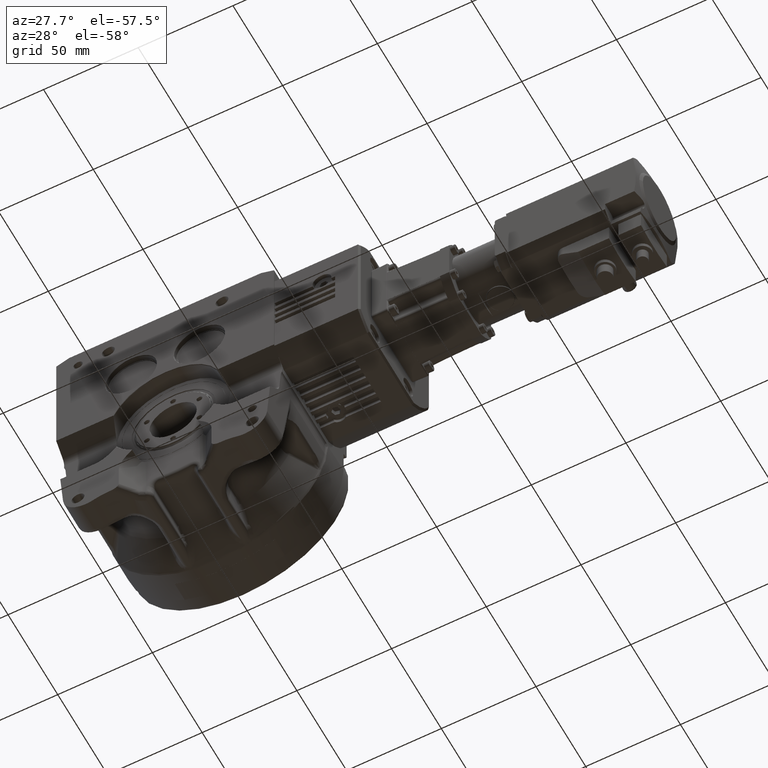
[diagram: clean part render]
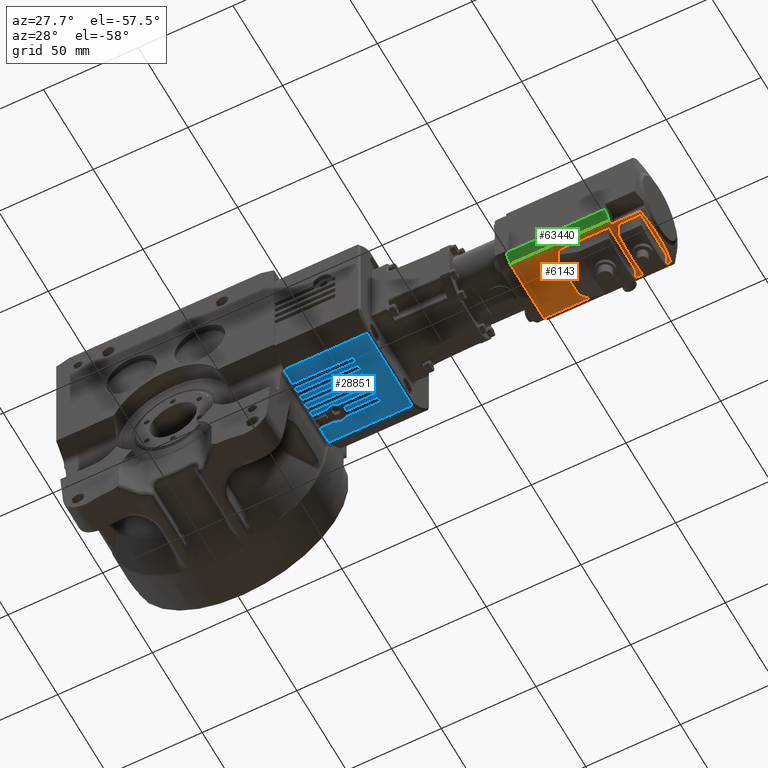
[diagram: same view with three faces highlighted in distinct colors, each labeled with its STEP entity id]
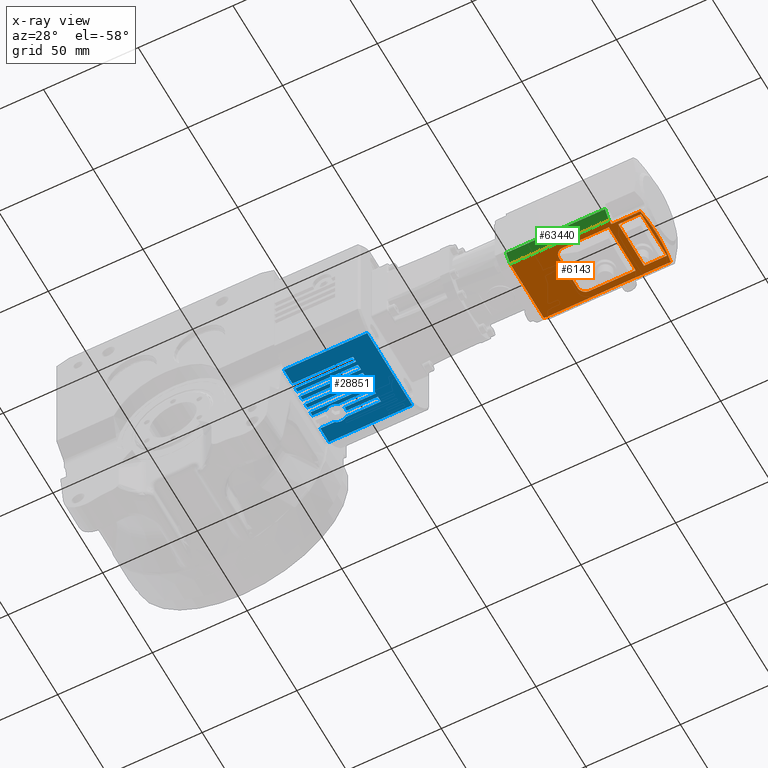
[diagram: x-ray of the same camera — body ghosted, the three highlighted faces saturated]
A machine part, auxiliary view with three faces highlighted in distinct colors.
The next image is the same camera in x-ray (body ghosted, the three faces saturated) — at least one of them is partly hidden behind the body in this view.
Their STEP definitions:

[orange] entity #6143 — the highlighted planar face has unit normal (0, 0, 1).
#312 = FACE_OUTER_BOUND ( 'NONE', #13886, .T. ) ;
#363 = ORIENTED_EDGE ( 'NONE', *, *, #46605, .F. ) ;
#704 = DIRECTION ( 'NONE',  ( -1.000000000000000000, 2.220446049250313081E-16, 1.169351221611224621E-16 ) ) ;
#1692 = CARTESIAN_POINT ( 'NONE',  ( -16.97056274847719237, -20.99999999999995026, 0.000000000000000000 ) ) ;
#2088 = VERTEX_POINT ( 'NONE', #67536 ) ;
#2299 = VERTEX_POINT ( 'NONE', #54953 ) ;
#2419 = DIRECTION ( 'NONE',  ( -1.169351221611225607E-16, 0.000000000000000000, 1.000000000000000000 ) ) ;
#2988 = ORIENTED_EDGE ( 'NONE', *, *, #25025, .F. ) ;
#2999 = EDGE_CURVE ( 'NONE', #32432, #38359, #22076, .T. ) ;
#3058 = VECTOR ( 'NONE', #62978, 1000.000000000000000 ) ;
#3418 = VERTEX_POINT ( 'NONE', #24358 ) ;
#4052 = VECTOR ( 'NONE', #41383, 1000.000000000000000 ) ;
#4349 = CARTESIAN_POINT ( 'NONE',  ( 12.99999999999999467, -21.00000000000000000, 54.99999999999990763 ) ) ;
#5010 = ORIENTED_EDGE ( 'NONE', *, *, #11012, .F. ) ;
#5049 = EDGE_CURVE ( 'NONE', #67641, #36668, #23503, .T. ) ;
#5214 = VERTEX_POINT ( 'NONE', #46166 ) ;
#5518 = LINE ( 'NONE', #17898, #7512 ) ;
#5537 = FACE_BOUND ( 'NONE', #29739, .T. ) ;
#5985 = VERTEX_POINT ( 'NONE', #4349 ) ;
#6134 = DIRECTION ( 'NONE',  ( 2.220446049250313081E-16, -1.000000000000000000, -1.338780126066745354E-16 ) ) ;
#6143 = ADVANCED_FACE ( 'NONE', ( #312, #66218, #5537 ), #78590, .F. ) ;
#6917 = VECTOR ( 'NONE', #15492, 1000.000000000000000 ) ;
#7214 = CARTESIAN_POINT ( 'NONE',  ( 13.00000000000000178, -20.99999999999999645, 66.99999999999994316 ) ) ;
#7512 = VECTOR ( 'NONE', #704, 1000.000000000000000 ) ;
#7543 = ORIENTED_EDGE ( 'NONE', *, *, #26271, .F. ) ;
#8406 = CARTESIAN_POINT ( 'NONE',  ( 6.938893903907228378E-15, -21.00000000000002132, -29.27722929522606776 ) ) ;
#8733 = CIRCLE ( 'NONE', #59759, 3.999999999999996447 ) ;
#9106 = EDGE_CURVE ( 'NONE', #5985, #58374, #11259, .T. ) ;
#10158 = ORIENTED_EDGE ( 'NONE', *, *, #13991, .F. ) ;
#10447 = VECTOR ( 'NONE', #78577, 1000.000000000000000 ) ;
#11012 = EDGE_CURVE ( 'NONE', #38359, #2088, #46240, .T. ) ;
#11074 = ORIENTED_EDGE ( 'NONE', *, *, #27665, .F. ) ;
#11112 = DIRECTION ( 'NONE',  ( -1.000000000000000000, 2.220446049250313081E-16, 1.169351221611224621E-16 ) ) ;
#11259 = LINE ( 'NONE', #58767, #78671 ) ;
#12300 = CARTESIAN_POINT ( 'NONE',  ( -13.49999999999999822, -20.99999999999998934, 50.29999999999989768 ) ) ;
#13597 = LINE ( 'NONE', #37928, #42270 ) ;
#13886 = EDGE_LOOP ( 'NONE', ( #33687, #53870, #363, #28427, #64249, #68762, #5010 ) ) ;
#13991 = EDGE_CURVE ( 'NONE', #3418, #77610, #8733, .T. ) ;
#15492 = DIRECTION ( 'NONE',  ( 1.169351221611223882E-16, 6.457729878323407826E-16, -1.000000000000000000 ) ) ;
#16219 = CIRCLE ( 'NONE', #39155, 97.77013859047140443 ) ;
#16903 = ORIENTED_EDGE ( 'NONE', *, *, #68602, .F. ) ;
#17898 = CARTESIAN_POINT ( 'NONE',  ( 21.00000000000000355, -20.99999999999996447, 0.000000000000000000 ) ) ;
#18311 = DIRECTION ( 'NONE',  ( -2.220446049250312834E-16, 1.000000000000000000, 6.457729878323407826E-16 ) ) ;
#18589 = CARTESIAN_POINT ( 'NONE',  ( -13.50000000000000533, -21.00000000000000355, 25.79999999999999005 ) ) ;
#19484 = VECTOR ( 'NONE', #37635, 1000.000000000000000 ) ;
#19567 = DIRECTION ( 'NONE',  ( -1.000000000000000000, 2.220446049250313081E-16, 2.454331574186637074E-16 ) ) ;
#20186 = CARTESIAN_POINT ( 'NONE',  ( -9.500000000000008882, -20.99999999999999645, 25.79999999999999005 ) ) ;
#20286 = EDGE_LOOP ( 'NONE', ( #2988, #59055, #76863, #61730 ) ) ;
#21065 = CARTESIAN_POINT ( 'NONE',  ( -16.97056274847720658, -20.99999999999998579, 52.19999999999991047 ) ) ;
#22076 = LINE ( 'NONE', #70793, #25519 ) ;
#22135 = DIRECTION ( 'NONE',  ( -2.220446049250313081E-16, 1.000000000000000000, 2.726558906848190043E-16 ) ) ;
#22919 = CARTESIAN_POINT ( 'NONE',  ( -14.50000000000000533, -20.99999999999998579, 52.19999999999991047 ) ) ;
#23503 = LINE ( 'NONE', #12300, #10447 ) ;
#23910 = DIRECTION ( 'NONE',  ( -1.169351221611223882E-16, -6.457729878323407826E-16, 1.000000000000000000 ) ) ;
#24358 = CARTESIAN_POINT ( 'NONE',  ( 9.500000000003838707, -20.99999999999997868, 21.79999999999998650 ) ) ;
#25025 = EDGE_CURVE ( 'NONE', #58374, #48986, #29884, .T. ) ;
#25114 = ORIENTED_EDGE ( 'NONE', *, *, #72436, .F. ) ;
#25519 = VECTOR ( 'NONE', #39633, 1000.000000000000000 ) ;
#25765 = CARTESIAN_POINT ( 'NONE',  ( 13.50000000000001243, -20.99999999999998934, 50.29999999999989768 ) ) ;
#25952 = CARTESIAN_POINT ( 'NONE',  ( 20.99999999999999645, -20.99999999999997868, 21.79999999999998650 ) ) ;
#26271 = EDGE_CURVE ( 'NONE', #44225, #3418, #72004, .T. ) ;
#26801 = DIRECTION ( 'NONE',  ( -2.220446049250313081E-16, 1.000000000000000000, 2.726558906848190043E-16 ) ) ;
#27085 = LINE ( 'NONE', #47292, #6917 ) ;
#27665 = EDGE_CURVE ( 'NONE', #36734, #67641, #13597, .T. ) ;
#28118 = EDGE_CURVE ( 'NONE', #30117, #29914, #55023, .T. ) ;
#28427 = ORIENTED_EDGE ( 'NONE', *, *, #68513, .F. ) ;
#29646 = CARTESIAN_POINT ( 'NONE',  ( -9.500000000000008882, -20.99999999999998224, 21.79999999999998650 ) ) ;
#29739 = EDGE_LOOP ( 'NONE', ( #11074, #16903, #10158, #7543, #25114, #53244 ) ) ;
#29884 = LINE ( 'NONE', #54598, #41719 ) ;
#29914 = VERTEX_POINT ( 'NONE', #41024 ) ;
#30117 = VERTEX_POINT ( 'NONE', #62511 ) ;
#30123 = DIRECTION ( 'NONE',  ( -1.169351221611225854E-16, 1.338780126066746587E-16, 1.000000000000000000 ) ) ;
#31639 = CARTESIAN_POINT ( 'NONE',  ( 20.99999999999999645, -21.00000000000000355, 54.99999999999990763 ) ) ;
#32432 = VERTEX_POINT ( 'NONE', #58335 ) ;
#33364 = AXIS2_PLACEMENT_3D ( 'NONE', #58838, #22135, #76420 ) ;
#33687 = ORIENTED_EDGE ( 'NONE', *, *, #2999, .F. ) ;
#34475 = EDGE_CURVE ( 'NONE', #48986, #5214, #77340, .T. ) ;
#35440 = CARTESIAN_POINT ( 'NONE',  ( -14.50000000000000533, -20.99999999999998579, 52.19999999999991047 ) ) ;
#36668 = VERTEX_POINT ( 'NONE', #18589 ) ;
#36734 = VERTEX_POINT ( 'NONE', #25765 ) ;
#37635 = DIRECTION ( 'NONE',  ( 1.000000000000000000, -2.220446049250313081E-16, -1.169351221611224621E-16 ) ) ;
#37928 = CARTESIAN_POINT ( 'NONE',  ( -13.49999999999999822, -20.99999999999998934, 50.29999999999989768 ) ) ;
#38359 = VERTEX_POINT ( 'NONE', #22919 ) ;
#38932 = DIRECTION ( 'NONE',  ( 0.000000000000000000, 0.000000000000000000, 1.000000000000000000 ) ) ;
#39155 = AXIS2_PLACEMENT_3D ( 'NONE', #8406, #26801, #2419 ) ;
#39633 = DIRECTION ( 'NONE',  ( 1.000000000000000000, -2.220446049250313081E-16, -1.169351221611224621E-16 ) ) ;
#40978 = CARTESIAN_POINT ( 'NONE',  ( -13.00000000000000533, -20.99999999999999289, 52.19999999999991047 ) ) ;
#41024 = CARTESIAN_POINT ( 'NONE',  ( 16.97056274847712842, -21.00000000000004619, 67.00880292129008353 ) ) ;
#41383 = DIRECTION ( 'NONE',  ( 1.169351221611223882E-16, 6.457729878323407826E-16, -1.000000000000000000 ) ) ;
#41719 = VECTOR ( 'NONE', #11112, 1000.000000000000000 ) ;
#42270 = VECTOR ( 'NONE', #19567, 1000.000000000000000 ) ;
#42875 = LINE ( 'NONE', #72839, #51549 ) ;
#43616 = LINE ( 'NONE', #31639, #19484 ) ;
#44225 = VERTEX_POINT ( 'NONE', #29646 ) ;
#44634 = EDGE_CURVE ( 'NONE', #2088, #30117, #16219, .T. ) ;
#46166 = CARTESIAN_POINT ( 'NONE',  ( -13.00000000000000533, -21.00000000000000355, 54.99999999999993605 ) ) ;
#46240 = LINE ( 'NONE', #35440, #50093 ) ;
#46605 = EDGE_CURVE ( 'NONE', #2299, #46958, #5518, .T. ) ;
#46958 = VERTEX_POINT ( 'NONE', #1692 ) ;
#47292 = CARTESIAN_POINT ( 'NONE',  ( 16.97056274847713553, -20.99999999999999645, 52.19999999999991047 ) ) ;
#48986 = VERTEX_POINT ( 'NONE', #69234 ) ;
#50093 = VECTOR ( 'NONE', #77766, 1000.000000000000000 ) ;
#50281 = DIRECTION ( 'NONE',  ( 1.000000000000000000, -2.220446049250313081E-16, -1.169351221611224621E-16 ) ) ;
#51549 = VECTOR ( 'NONE', #30123, 1000.000000000000000 ) ;
#53244 = ORIENTED_EDGE ( 'NONE', *, *, #5049, .F. ) ;
#53270 = CARTESIAN_POINT ( 'NONE',  ( 9.500000000000008882, -20.99999999999998224, 25.79999999999999005 ) ) ;
#53570 = DIRECTION ( 'NONE',  ( -1.169351221611223882E-16, -6.457729878323407826E-16, 1.000000000000000000 ) ) ;
#53870 = ORIENTED_EDGE ( 'NONE', *, *, #66977, .F. ) ;
#54598 = CARTESIAN_POINT ( 'NONE',  ( 20.99999999999999289, -21.00000000000001066, 66.99999999999994316 ) ) ;
#54953 = CARTESIAN_POINT ( 'NONE',  ( 16.97056274847716395, -20.99999999999996092, 0.000000000000000000 ) ) ;
#55023 = CIRCLE ( 'NONE', #33364, 97.77013859047140443 ) ;
#57808 = AXIS2_PLACEMENT_3D ( 'NONE', #73001, #18311, #23910 ) ;
#58335 = CARTESIAN_POINT ( 'NONE',  ( -16.97056274847717106, -20.99999999999998579, 52.19999999999991047 ) ) ;
#58374 = VERTEX_POINT ( 'NONE', #7214 ) ;
#58767 = CARTESIAN_POINT ( 'NONE',  ( 12.99999999999999467, -20.99999999999999289, 52.19999999999991047 ) ) ;
#58838 = CARTESIAN_POINT ( 'NONE',  ( 6.938893903907228378E-15, -21.00000000000002132, -29.27722929522606776 ) ) ;
#59055 = ORIENTED_EDGE ( 'NONE', *, *, #9106, .F. ) ;
#59655 = DIRECTION ( 'NONE',  ( 0.000000000000000000, 0.000000000000000000, 1.000000000000000000 ) ) ;
#59759 = AXIS2_PLACEMENT_3D ( 'NONE', #53270, #6134, #59655 ) ;
#60462 = CARTESIAN_POINT ( 'NONE',  ( 13.50000000000001243, -20.99999999999998934, 25.79999999999996163 ) ) ;
#61730 = ORIENTED_EDGE ( 'NONE', *, *, #34475, .F. ) ;
#62275 = VECTOR ( 'NONE', #50281, 1000.000000000000000 ) ;
#62511 = CARTESIAN_POINT ( 'NONE',  ( 1.490221005174088942E-14, -21.00000000000004974, 68.49290929524541127 ) ) ;
#62978 = DIRECTION ( 'NONE',  ( -1.169351221611223882E-16, -6.457729878323407826E-16, 1.000000000000000000 ) ) ;
#63655 = DIRECTION ( 'NONE',  ( 2.220446049250313081E-16, -1.000000000000000000, -1.338780126066745354E-16 ) ) ;
#64249 = ORIENTED_EDGE ( 'NONE', *, *, #28118, .F. ) ;
#64820 = AXIS2_PLACEMENT_3D ( 'NONE', #20186, #63655, #38932 ) ;
#66218 = FACE_BOUND ( 'NONE', #20286, .T. ) ;
#66977 = EDGE_CURVE ( 'NONE', #46958, #32432, #75771, .T. ) ;
#67536 = CARTESIAN_POINT ( 'NONE',  ( -14.50000000000000178, -20.99999999999441869, 67.41170492167498196 ) ) ;
#67641 = VERTEX_POINT ( 'NONE', #76745 ) ;
#68513 = EDGE_CURVE ( 'NONE', #29914, #2299, #27085, .T. ) ;
#68602 = EDGE_CURVE ( 'NONE', #77610, #36734, #42875, .T. ) ;
#68653 = CIRCLE ( 'NONE', #64820, 3.999999999999996447 ) ;
#68762 = ORIENTED_EDGE ( 'NONE', *, *, #44634, .F. ) ;
#69234 = CARTESIAN_POINT ( 'NONE',  ( -12.99999999999999822, -20.99999999999999645, 66.99999999999994316 ) ) ;
#70793 = CARTESIAN_POINT ( 'NONE',  ( 20.99999999999999645, -21.00000000000000000, 52.19999999999991047 ) ) ;
#72004 = LINE ( 'NONE', #25952, #62275 ) ;
#72436 = EDGE_CURVE ( 'NONE', #36668, #44225, #68653, .T. ) ;
#72839 = CARTESIAN_POINT ( 'NONE',  ( 13.50000000000001243, -20.99999999999998934, 50.29999999999989768 ) ) ;
#73001 = CARTESIAN_POINT ( 'NONE',  ( 20.99999999999999645, -21.00000000000000000, 52.19999999999991047 ) ) ;
#75771 = LINE ( 'NONE', #21065, #3058 ) ;
#76420 = DIRECTION ( 'NONE',  ( -1.169351221611225607E-16, 0.000000000000000000, 1.000000000000000000 ) ) ;
#76745 = CARTESIAN_POINT ( 'NONE',  ( -13.49999999999999822, -20.99999999999998934, 50.29999999999989768 ) ) ;
#76819 = EDGE_CURVE ( 'NONE', #5214, #5985, #43616, .T. ) ;
#76863 = ORIENTED_EDGE ( 'NONE', *, *, #76819, .F. ) ;
#77340 = LINE ( 'NONE', #40978, #4052 ) ;
#77610 = VERTEX_POINT ( 'NONE', #60462 ) ;
#77766 = DIRECTION ( 'NONE',  ( -1.169351221611223882E-16, -6.457729878323407826E-16, 1.000000000000000000 ) ) ;
#78577 = DIRECTION ( 'NONE',  ( -1.265348393794821582E-16, -1.338780126066746094E-16, -1.000000000000000000 ) ) ;
#78590 = PLANE ( 'NONE',  #57808 ) ;
#78671 = VECTOR ( 'NONE', #53570, 1000.000000000000000 ) ;

[blue] entity #28851 — the highlighted planar face has unit normal (0, 0, -1).
#155 = VERTEX_POINT ( 'NONE', #12100 ) ;
#167 = EDGE_CURVE ( 'NONE', #60439, #34919, #60785, .T. ) ;
#239 = VECTOR ( 'NONE', #31982, 1000.000000000000000 ) ;
#275 = ORIENTED_EDGE ( 'NONE', *, *, #35340, .F. ) ;
#316 = EDGE_CURVE ( 'NONE', #19122, #11667, #1684, .T. ) ;
#717 = CARTESIAN_POINT ( 'NONE',  ( 44.00000000000000000, -22.58871399615305364, -36.00000000000000000 ) ) ;
#727 = VERTEX_POINT ( 'NONE', #30689 ) ;
#847 = EDGE_CURVE ( 'NONE', #59356, #62977, #6326, .T. ) ;
#866 = CARTESIAN_POINT ( 'NONE',  ( 10.50000000000000000, 10.00000000000000000, -36.00000000000000000 ) ) ;
#1224 = LINE ( 'NONE', #8674, #24149 ) ;
#1415 = VECTOR ( 'NONE', #58932, 1000.000000000000000 ) ;
#1684 = LINE ( 'NONE', #75527, #22350 ) ;
#1851 = CARTESIAN_POINT ( 'NONE',  ( 32.00000000000000000, 14.00000000000000000, -36.00000000000000000 ) ) ;
#1935 = DIRECTION ( 'NONE',  ( -1.000000000000000000, 0.000000000000000000, 0.000000000000000000 ) ) ;
#2015 = ORIENTED_EDGE ( 'NONE', *, *, #50230, .F. ) ;
#2874 = VECTOR ( 'NONE', #3400, 1000.000000000000000 ) ;
#3304 = EDGE_CURVE ( 'NONE', #74773, #21040, #20029, .T. ) ;
#3348 = VECTOR ( 'NONE', #12873, 1000.000000000000000 ) ;
#3400 = DIRECTION ( 'NONE',  ( 1.000000000000000000, 0.000000000000000000, 0.000000000000000000 ) ) ;
#3618 = CARTESIAN_POINT ( 'NONE',  ( 0.000000000000000000, 22.58871399615305364, -36.00000000000000000 ) ) ;
#4108 = CARTESIAN_POINT ( 'NONE',  ( -171.4026837596190092, -4.000000000000000000, -36.00000000000000000 ) ) ;
#4374 = VERTEX_POINT ( 'NONE', #53603 ) ;
#4442 = LINE ( 'NONE', #42351, #14209 ) ;
#4522 = ORIENTED_EDGE ( 'NONE', *, *, #23281, .F. ) ;
#4736 = DIRECTION ( 'NONE',  ( 0.000000000000000000, 1.000000000000000000, 3.936961080231049848E-16 ) ) ;
#4979 = CARTESIAN_POINT ( 'NONE',  ( 32.00000000000000000, 22.50000000000000000, -36.00000000000000000 ) ) ;
#5250 = ORIENTED_EDGE ( 'NONE', *, *, #847, .T. ) ;
#6050 = EDGE_CURVE ( 'NONE', #21040, #57210, #31066, .T. ) ;
#6211 = LINE ( 'NONE', #29802, #36185 ) ;
#6326 = LINE ( 'NONE', #12724, #44680 ) ;
#6833 = CARTESIAN_POINT ( 'NONE',  ( 10.50000000000000000, 10.00000000000000000, -36.00000000000000000 ) ) ;
#7055 = CARTESIAN_POINT ( 'NONE',  ( 0.000000000000000000, 4.000000000000000000, -36.00000000000000000 ) ) ;
#7568 = VECTOR ( 'NONE', #19666, 1000.000000000000000 ) ;
#8552 = CARTESIAN_POINT ( 'NONE',  ( 32.00000000000000000, -11.00000000000000000, -36.00000000000000000 ) ) ;
#8563 = ORIENTED_EDGE ( 'NONE', *, *, #53714, .F. ) ;
#8674 = CARTESIAN_POINT ( 'NONE',  ( 0.000000000000000000, 38.50000000000000000, -36.00000000000000000 ) ) ;
#9063 = CARTESIAN_POINT ( 'NONE',  ( 7.500000000000000000, 6.000000000000000000, -36.00000000000000000 ) ) ;
#9074 = FACE_OUTER_BOUND ( 'NONE', #75747, .T. ) ;
#9401 = DIRECTION ( 'NONE',  ( 0.000000000000000000, 1.000000000000000000, 0.000000000000000000 ) ) ;
#9790 = CARTESIAN_POINT ( 'NONE',  ( -171.4026837596190092, 11.00000000000000000, -36.00000000000000000 ) ) ;
#9793 = LINE ( 'NONE', #46540, #11182 ) ;
#9921 = CARTESIAN_POINT ( 'NONE',  ( 32.00000000000000000, 22.50000000000000000, -36.00000000000000000 ) ) ;
#11029 = DIRECTION ( 'NONE',  ( -1.000000000000000000, 0.000000000000000000, 0.000000000000000000 ) ) ;
#11115 = DIRECTION ( 'NONE',  ( 0.000000000000000000, 1.000000000000000000, 3.936961080231049848E-16 ) ) ;
#11156 = VERTEX_POINT ( 'NONE', #7055 ) ;
#11182 = VECTOR ( 'NONE', #64885, 1000.000000000000000 ) ;
#11231 = DIRECTION ( 'NONE',  ( -1.000000000000000000, 0.000000000000000000, 0.000000000000000000 ) ) ;
#11376 = EDGE_CURVE ( 'NONE', #30834, #4374, #36111, .T. ) ;
#11667 = VERTEX_POINT ( 'NONE', #8552 ) ;
#12100 = CARTESIAN_POINT ( 'NONE',  ( 32.00000000000000000, 1.000000000000000000, -36.00000000000000000 ) ) ;
#12616 = DIRECTION ( 'NONE',  ( 0.000000000000000000, -1.000000000000000000, -9.842402700577629551E-17 ) ) ;
#12724 = CARTESIAN_POINT ( 'NONE',  ( 32.00000000000000000, 22.50000000000000000, -36.00000000000000000 ) ) ;
#12873 = DIRECTION ( 'NONE',  ( -1.000000000000000000, 0.000000000000000000, 0.000000000000000000 ) ) ;
#13558 = EDGE_CURVE ( 'NONE', #727, #51156, #42171, .T. ) ;
#13995 = ORIENTED_EDGE ( 'NONE', *, *, #44519, .F. ) ;
#14192 = VECTOR ( 'NONE', #32772, 1000.000000000000000 ) ;
#14209 = VECTOR ( 'NONE', #28818, 1000.000000000000000 ) ;
#14445 = CARTESIAN_POINT ( 'NONE',  ( 0.000000000000000000, 38.50000000000000000, -36.00000000000000000 ) ) ;
#14540 = LINE ( 'NONE', #4108, #24750 ) ;
#15454 = LINE ( 'NONE', #52162, #44221 ) ;
#15653 = CARTESIAN_POINT ( 'NONE',  ( -171.4026837596190092, 6.000000000000000000, -36.00000000000000000 ) ) ;
#16627 = CARTESIAN_POINT ( 'NONE',  ( -171.4026837596190092, -14.00000000000000000, -36.00000000000000000 ) ) ;
#16814 = ORIENTED_EDGE ( 'NONE', *, *, #51284, .F. ) ;
#17041 = DIRECTION ( 'NONE',  ( 0.000000000000000000, 1.000000000000000000, 3.936961080231049848E-16 ) ) ;
#17128 = CARTESIAN_POINT ( 'NONE',  ( 32.00000000000000000, 22.50000000000000000, -36.00000000000000000 ) ) ;
#17219 = ORIENTED_EDGE ( 'NONE', *, *, #20312, .F. ) ;
#17240 = VERTEX_POINT ( 'NONE', #52137 ) ;
#17467 = VECTOR ( 'NONE', #71102, 1000.000000000000000 ) ;
#17809 = LINE ( 'NONE', #16627, #58710 ) ;
#17835 = DIRECTION ( 'NONE',  ( 1.000000000000000000, 0.000000000000000000, 0.000000000000000000 ) ) ;
#17961 = VECTOR ( 'NONE', #11231, 1000.000000000000000 ) ;
#18056 = ORIENTED_EDGE ( 'NONE', *, *, #45065, .T. ) ;
#18260 = VERTEX_POINT ( 'NONE', #43118 ) ;
#18797 = CARTESIAN_POINT ( 'NONE',  ( 0.000000000000000000, 14.00000000000000000, -36.00000000000000000 ) ) ;
#18911 = VERTEX_POINT ( 'NONE', #69727 ) ;
#19122 = VERTEX_POINT ( 'NONE', #72495 ) ;
#19235 = DIRECTION ( 'NONE',  ( 0.000000000000000000, 0.000000000000000000, -1.000000000000000000 ) ) ;
#19666 = DIRECTION ( 'NONE',  ( -1.000000000000000000, 0.000000000000000000, 0.000000000000000000 ) ) ;
#20010 = EDGE_CURVE ( 'NONE', #74198, #18260, #77413, .T. ) ;
#20029 = LINE ( 'NONE', #49577, #239 ) ;
#20246 = CARTESIAN_POINT ( 'NONE',  ( 32.00000000000000000, -4.000000000000000000, -36.00000000000000000 ) ) ;
#20312 = EDGE_CURVE ( 'NONE', #60812, #18911, #17809, .T. ) ;
#20829 = DIRECTION ( 'NONE',  ( 1.000000000000000000, 0.000000000000000000, 0.000000000000000000 ) ) ;
#20912 = ORIENTED_EDGE ( 'NONE', *, *, #32800, .F. ) ;
#21040 = VERTEX_POINT ( 'NONE', #26458 ) ;
#21972 = ORIENTED_EDGE ( 'NONE', *, *, #29050, .F. ) ;
#22350 = VECTOR ( 'NONE', #20829, 1000.000000000000000 ) ;
#22385 = VECTOR ( 'NONE', #12616, 1000.000000000000000 ) ;
#22523 = ORIENTED_EDGE ( 'NONE', *, *, #60342, .F. ) ;
#22568 = ORIENTED_EDGE ( 'NONE', *, *, #54515, .T. ) ;
#22844 = EDGE_CURVE ( 'NONE', #11156, #39536, #31015, .T. ) ;
#22946 = DIRECTION ( 'NONE',  ( 0.000000000000000000, 1.000000000000000000, 3.936961080231049848E-16 ) ) ;
#23120 = LINE ( 'NONE', #47466, #24460 ) ;
#23281 = EDGE_CURVE ( 'NONE', #34919, #11156, #64683, .T. ) ;
#23412 = CARTESIAN_POINT ( 'NONE',  ( -171.4026837596190092, 14.00000000000000000, -36.00000000000000000 ) ) ;
#23810 = LINE ( 'NONE', #23412, #47472 ) ;
#24149 = VECTOR ( 'NONE', #43951, 1000.000000000000000 ) ;
#24460 = VECTOR ( 'NONE', #58634, 1000.000000000000000 ) ;
#24750 = VECTOR ( 'NONE', #52824, 1000.000000000000000 ) ;
#24824 = VERTEX_POINT ( 'NONE', #31522 ) ;
#25009 = CARTESIAN_POINT ( 'NONE',  ( 0.000000000000000000, 38.50000000000000000, -36.00000000000000000 ) ) ;
#25766 = DIRECTION ( 'NONE',  ( 0.000000000000000000, -1.000000000000000000, -9.842402700577629551E-17 ) ) ;
#25937 = AXIS2_PLACEMENT_3D ( 'NONE', #30905, #48469, #72847 ) ;
#26066 = LINE ( 'NONE', #50003, #7568 ) ;
#26458 = CARTESIAN_POINT ( 'NONE',  ( 44.00000000000000000, 22.58871399615305364, -36.00000000000000000 ) ) ;
#27203 = ORIENTED_EDGE ( 'NONE', *, *, #64291, .F. ) ;
#27459 = ORIENTED_EDGE ( 'NONE', *, *, #11376, .F. ) ;
#27607 = CIRCLE ( 'NONE', #76050, 4.999999999999999112 ) ;
#27778 = DIRECTION ( 'NONE',  ( -1.000000000000000000, 0.000000000000000000, 0.000000000000000000 ) ) ;
#28276 = CARTESIAN_POINT ( 'NONE',  ( 0.000000000000000000, -9.000000000000000000, -36.00000000000000000 ) ) ;
#28818 = DIRECTION ( 'NONE',  ( 1.000000000000000000, 0.000000000000000000, 0.000000000000000000 ) ) ;
#28851 = ADVANCED_FACE ( 'NONE', ( #9074 ), #69392, .T. ) ;
#29050 = EDGE_CURVE ( 'NONE', #67843, #18260, #32166, .T. ) ;
#29233 = CARTESIAN_POINT ( 'NONE',  ( 0.000000000000000000, -6.000000000000000000, -36.00000000000000000 ) ) ;
#29411 = EDGE_CURVE ( 'NONE', #55153, #66778, #64144, .T. ) ;
#29802 = CARTESIAN_POINT ( 'NONE',  ( 32.00000000000000000, 22.50000000000000000, -36.00000000000000000 ) ) ;
#30213 = VERTEX_POINT ( 'NONE', #1851 ) ;
#30549 = LINE ( 'NONE', #9921, #43988 ) ;
#30689 = CARTESIAN_POINT ( 'NONE',  ( 0.000000000000000000, -1.000000000000000000, -36.00000000000000000 ) ) ;
#30834 = VERTEX_POINT ( 'NONE', #48389 ) ;
#30905 = CARTESIAN_POINT ( 'NONE',  ( 10.50000000000000000, 10.00000000000000000, -36.00000000000000000 ) ) ;
#31015 = LINE ( 'NONE', #67727, #56934 ) ;
#31066 = LINE ( 'NONE', #717, #32329 ) ;
#31522 = CARTESIAN_POINT ( 'NONE',  ( 13.50000000000000000, 14.00000000000000000, -36.00000000000000000 ) ) ;
#31657 = VECTOR ( 'NONE', #22946, 1000.000000000000000 ) ;
#31811 = ORIENTED_EDGE ( 'NONE', *, *, #56030, .F. ) ;
#31982 = DIRECTION ( 'NONE',  ( 1.000000000000000000, 0.000000000000000000, 0.000000000000000000 ) ) ;
#32166 = LINE ( 'NONE', #69299, #2874 ) ;
#32329 = VECTOR ( 'NONE', #60605, 1000.000000000000000 ) ;
#32772 = DIRECTION ( 'NONE',  ( 0.000000000000000000, -1.000000000000000000, -9.842402700577629551E-17 ) ) ;
#32800 = EDGE_CURVE ( 'NONE', #77201, #30834, #52157, .T. ) ;
#33229 = ORIENTED_EDGE ( 'NONE', *, *, #20010, .T. ) ;
#33786 = EDGE_CURVE ( 'NONE', #66778, #62977, #4442, .T. ) ;
#34085 = VERTEX_POINT ( 'NONE', #52663 ) ;
#34542 = ORIENTED_EDGE ( 'NONE', *, *, #69066, .F. ) ;
#34919 = VERTEX_POINT ( 'NONE', #74290 ) ;
#35340 = EDGE_CURVE ( 'NONE', #155, #74960, #70811, .T. ) ;
#35379 = DIRECTION ( 'NONE',  ( 1.000000000000000000, 0.000000000000000000, 0.000000000000000000 ) ) ;
#36077 = VECTOR ( 'NONE', #71604, 1000.000000000000000 ) ;
#36111 = CIRCLE ( 'NONE', #69242, 4.999999999999999112 ) ;
#36185 = VECTOR ( 'NONE', #17041, 1000.000000000000000 ) ;
#36815 = LINE ( 'NONE', #14445, #14192 ) ;
#37063 = DIRECTION ( 'NONE',  ( 0.000000000000000000, 1.000000000000000000, 3.936961080231049848E-16 ) ) ;
#37362 = ORIENTED_EDGE ( 'NONE', *, *, #56530, .F. ) ;
#37938 = EDGE_CURVE ( 'NONE', #155, #39536, #6211, .T. ) ;
#38327 = VECTOR ( 'NONE', #4736, 1000.000000000000000 ) ;
#39536 = VERTEX_POINT ( 'NONE', #42102 ) ;
#39604 = ORIENTED_EDGE ( 'NONE', *, *, #37938, .T. ) ;
#39747 = CARTESIAN_POINT ( 'NONE',  ( 10.50000000000000000, 10.00000000000000000, -36.00000000000000000 ) ) ;
#40059 = CARTESIAN_POINT ( 'NONE',  ( -171.4026837596190092, 1.000000000000000000, -36.00000000000000000 ) ) ;
#41146 = ORIENTED_EDGE ( 'NONE', *, *, #29411, .F. ) ;
#42102 = CARTESIAN_POINT ( 'NONE',  ( 32.00000000000000000, 4.000000000000000000, -36.00000000000000000 ) ) ;
#42164 = LINE ( 'NONE', #25009, #22385 ) ;
#42171 = LINE ( 'NONE', #60914, #57128 ) ;
#42351 = CARTESIAN_POINT ( 'NONE',  ( -171.4026837596190092, 9.000000000000000000, -36.00000000000000000 ) ) ;
#43118 = CARTESIAN_POINT ( 'NONE',  ( 32.00000000000000000, -6.000000000000000000, -36.00000000000000000 ) ) ;
#43240 = ORIENTED_EDGE ( 'NONE', *, *, #76331, .F. ) ;
#43951 = DIRECTION ( 'NONE',  ( 0.000000000000000000, -1.000000000000000000, -9.842402700577629551E-17 ) ) ;
#43988 = VECTOR ( 'NONE', #11115, 1000.000000000000000 ) ;
#44218 = CARTESIAN_POINT ( 'NONE',  ( 13.50000000000000000, 6.000000000000000000, -36.00000000000000000 ) ) ;
#44221 = VECTOR ( 'NONE', #70538, 1000.000000000000000 ) ;
#44352 = DIRECTION ( 'NONE',  ( 0.000000000000000000, 1.000000000000000000, 0.000000000000000000 ) ) ;
#44519 = EDGE_CURVE ( 'NONE', #4374, #24824, #27607, .T. ) ;
#44680 = VECTOR ( 'NONE', #37063, 1000.000000000000000 ) ;
#45065 = EDGE_CURVE ( 'NONE', #34085, #30213, #9793, .T. ) ;
#46540 = CARTESIAN_POINT ( 'NONE',  ( 32.00000000000000000, 22.50000000000000000, -36.00000000000000000 ) ) ;
#46984 = EDGE_CURVE ( 'NONE', #57210, #68614, #26066, .T. ) ;
#47067 = CARTESIAN_POINT ( 'NONE',  ( 32.00000000000000000, -1.000000000000000000, -36.00000000000000000 ) ) ;
#47466 = CARTESIAN_POINT ( 'NONE',  ( -171.4026837596190092, -9.000000000000000000, -36.00000000000000000 ) ) ;
#47472 = VECTOR ( 'NONE', #35379, 1000.000000000000000 ) ;
#48259 = EDGE_CURVE ( 'NONE', #59356, #65902, #59539, .T. ) ;
#48389 = CARTESIAN_POINT ( 'NONE',  ( 7.500000000000000000, 14.00000000000000000, -36.00000000000000000 ) ) ;
#48469 = DIRECTION ( 'NONE',  ( 0.000000000000000000, 0.000000000000000000, -1.000000000000000000 ) ) ;
#48593 = CARTESIAN_POINT ( 'NONE',  ( 32.00000000000000000, -9.000000000000000000, -36.00000000000000000 ) ) ;
#49577 = CARTESIAN_POINT ( 'NONE',  ( 0.000000000000000000, 22.58871399615305364, -36.00000000000000000 ) ) ;
#50003 = CARTESIAN_POINT ( 'NONE',  ( 0.000000000000000000, -22.58871399615305364, -36.00000000000000000 ) ) ;
#50230 = EDGE_CURVE ( 'NONE', #17240, #67843, #56075, .T. ) ;
#50712 = CARTESIAN_POINT ( 'NONE',  ( 44.00000000000000000, -22.58871399615305364, -36.00000000000000000 ) ) ;
#51156 = VERTEX_POINT ( 'NONE', #47067 ) ;
#51284 = EDGE_CURVE ( 'NONE', #74198, #69749, #23120, .T. ) ;
#51383 = ORIENTED_EDGE ( 'NONE', *, *, #13558, .F. ) ;
#51558 = CARTESIAN_POINT ( 'NONE',  ( 15.39897948556634866, 11.00000000000000000, -36.00000000000000000 ) ) ;
#52137 = CARTESIAN_POINT ( 'NONE',  ( 0.000000000000000000, -4.000000000000000000, -36.00000000000000000 ) ) ;
#52157 = LINE ( 'NONE', #52549, #1415 ) ;
#52162 = CARTESIAN_POINT ( 'NONE',  ( 0.000000000000000000, 38.50000000000000000, -36.00000000000000000 ) ) ;
#52549 = CARTESIAN_POINT ( 'NONE',  ( -171.4026837596190092, 14.00000000000000000, -36.00000000000000000 ) ) ;
#52663 = CARTESIAN_POINT ( 'NONE',  ( 32.00000000000000000, 11.00000000000000000, -36.00000000000000000 ) ) ;
#52824 = DIRECTION ( 'NONE',  ( -1.000000000000000000, 0.000000000000000000, 0.000000000000000000 ) ) ;
#53399 = ORIENTED_EDGE ( 'NONE', *, *, #33786, .F. ) ;
#53603 = CARTESIAN_POINT ( 'NONE',  ( 10.50000000000000000, 15.00000000000000000, -36.00000000000000000 ) ) ;
#53714 = EDGE_CURVE ( 'NONE', #75110, #17240, #14540, .T. ) ;
#54070 = CARTESIAN_POINT ( 'NONE',  ( 0.000000000000000000, -22.58871399615305364, -36.00000000000000000 ) ) ;
#54515 = EDGE_CURVE ( 'NONE', #75110, #51156, #30549, .T. ) ;
#55153 = VERTEX_POINT ( 'NONE', #51558 ) ;
#55660 = ORIENTED_EDGE ( 'NONE', *, *, #59644, .T. ) ;
#56030 = EDGE_CURVE ( 'NONE', #18911, #68614, #15454, .T. ) ;
#56075 = LINE ( 'NONE', #74068, #74233 ) ;
#56115 = CARTESIAN_POINT ( 'NONE',  ( 32.00000000000000000, 6.000000000000000000, -36.00000000000000000 ) ) ;
#56530 = EDGE_CURVE ( 'NONE', #69749, #19122, #42164, .T. ) ;
#56790 = ORIENTED_EDGE ( 'NONE', *, *, #48259, .F. ) ;
#56934 = VECTOR ( 'NONE', #61329, 1000.000000000000000 ) ;
#57128 = VECTOR ( 'NONE', #17835, 1000.000000000000000 ) ;
#57210 = VERTEX_POINT ( 'NONE', #50712 ) ;
#57704 = AXIS2_PLACEMENT_3D ( 'NONE', #63767, #76171, #1935 ) ;
#57823 = VECTOR ( 'NONE', #27778, 1000.000000000000000 ) ;
#58634 = DIRECTION ( 'NONE',  ( -1.000000000000000000, 0.000000000000000000, 0.000000000000000000 ) ) ;
#58710 = VECTOR ( 'NONE', #11029, 1000.000000000000000 ) ;
#58886 = ORIENTED_EDGE ( 'NONE', *, *, #77456, .F. ) ;
#58932 = DIRECTION ( 'NONE',  ( 1.000000000000000000, 0.000000000000000000, 0.000000000000000000 ) ) ;
#59011 = CARTESIAN_POINT ( 'NONE',  ( 0.000000000000000000, 1.000000000000000000, -36.00000000000000000 ) ) ;
#59258 = AXIS2_PLACEMENT_3D ( 'NONE', #6833, #61926, #44352 ) ;
#59356 = VERTEX_POINT ( 'NONE', #56115 ) ;
#59539 = LINE ( 'NONE', #15653, #17961 ) ;
#59644 = EDGE_CURVE ( 'NONE', #60812, #11667, #77643, .T. ) ;
#60342 = EDGE_CURVE ( 'NONE', #74773, #77201, #1224, .T. ) ;
#60439 = VERTEX_POINT ( 'NONE', #9063 ) ;
#60605 = DIRECTION ( 'NONE',  ( 0.000000000000000000, -1.000000000000000000, -3.936961080231049848E-16 ) ) ;
#60621 = ORIENTED_EDGE ( 'NONE', *, *, #22844, .F. ) ;
#60785 = LINE ( 'NONE', #67183, #3348 ) ;
#60812 = VERTEX_POINT ( 'NONE', #71664 ) ;
#60914 = CARTESIAN_POINT ( 'NONE',  ( -171.4026837596190092, -1.000000000000000000, -36.00000000000000000 ) ) ;
#61329 = DIRECTION ( 'NONE',  ( 1.000000000000000000, 0.000000000000000000, 0.000000000000000000 ) ) ;
#61926 = DIRECTION ( 'NONE',  ( 0.000000000000000000, 0.000000000000000000, -1.000000000000000000 ) ) ;
#62977 = VERTEX_POINT ( 'NONE', #64984 ) ;
#63767 = CARTESIAN_POINT ( 'NONE',  ( -171.4026837596190092, 38.50000000000000000, -36.00000000000000000 ) ) ;
#64104 = DIRECTION ( 'NONE',  ( 0.000000000000000000, 0.000000000000000000, -1.000000000000000000 ) ) ;
#64144 = CIRCLE ( 'NONE', #25937, 4.999999999999999112 ) ;
#64286 = CARTESIAN_POINT ( 'NONE',  ( 0.000000000000000000, 38.50000000000000000, -36.00000000000000000 ) ) ;
#64291 = EDGE_CURVE ( 'NONE', #74960, #727, #36815, .T. ) ;
#64683 = LINE ( 'NONE', #64286, #17467 ) ;
#64885 = DIRECTION ( 'NONE',  ( 0.000000000000000000, 1.000000000000000000, 3.936961080231049848E-16 ) ) ;
#64984 = CARTESIAN_POINT ( 'NONE',  ( 32.00000000000000000, 9.000000000000000000, -36.00000000000000000 ) ) ;
#65902 = VERTEX_POINT ( 'NONE', #44218 ) ;
#66778 = VERTEX_POINT ( 'NONE', #75546 ) ;
#67183 = CARTESIAN_POINT ( 'NONE',  ( -171.4026837596190092, 6.000000000000000000, -36.00000000000000000 ) ) ;
#67554 = ORIENTED_EDGE ( 'NONE', *, *, #316, .F. ) ;
#67727 = CARTESIAN_POINT ( 'NONE',  ( -171.4026837596190092, 4.000000000000000000, -36.00000000000000000 ) ) ;
#67843 = VERTEX_POINT ( 'NONE', #29233 ) ;
#68614 = VERTEX_POINT ( 'NONE', #54070 ) ;
#69066 = EDGE_CURVE ( 'NONE', #65902, #60439, #70718, .T. ) ;
#69242 = AXIS2_PLACEMENT_3D ( 'NONE', #39747, #64104, #9401 ) ;
#69299 = CARTESIAN_POINT ( 'NONE',  ( -171.4026837596190092, -6.000000000000000000, -36.00000000000000000 ) ) ;
#69392 = PLANE ( 'NONE',  #57704 ) ;
#69727 = CARTESIAN_POINT ( 'NONE',  ( 0.000000000000000000, -14.00000000000000000, -36.00000000000000000 ) ) ;
#69749 = VERTEX_POINT ( 'NONE', #28276 ) ;
#70328 = ORIENTED_EDGE ( 'NONE', *, *, #167, .F. ) ;
#70538 = DIRECTION ( 'NONE',  ( 0.000000000000000000, -1.000000000000000000, -9.842402700577629551E-17 ) ) ;
#70718 = CIRCLE ( 'NONE', #59258, 4.999999999999999112 ) ;
#70811 = LINE ( 'NONE', #40059, #36077 ) ;
#71102 = DIRECTION ( 'NONE',  ( 0.000000000000000000, -1.000000000000000000, -9.842402700577629551E-17 ) ) ;
#71604 = DIRECTION ( 'NONE',  ( -1.000000000000000000, 0.000000000000000000, 0.000000000000000000 ) ) ;
#71664 = CARTESIAN_POINT ( 'NONE',  ( 32.00000000000000000, -14.00000000000000000, -36.00000000000000000 ) ) ;
#72495 = CARTESIAN_POINT ( 'NONE',  ( 0.000000000000000000, -11.00000000000000000, -36.00000000000000000 ) ) ;
#72847 = DIRECTION ( 'NONE',  ( 0.000000000000000000, 1.000000000000000000, 0.000000000000000000 ) ) ;
#73872 = ORIENTED_EDGE ( 'NONE', *, *, #6050, .T. ) ;
#74068 = CARTESIAN_POINT ( 'NONE',  ( 0.000000000000000000, 38.50000000000000000, -36.00000000000000000 ) ) ;
#74198 = VERTEX_POINT ( 'NONE', #48593 ) ;
#74233 = VECTOR ( 'NONE', #25766, 1000.000000000000000 ) ;
#74290 = CARTESIAN_POINT ( 'NONE',  ( 0.000000000000000000, 6.000000000000000000, -36.00000000000000000 ) ) ;
#74329 = DIRECTION ( 'NONE',  ( 0.000000000000000000, 1.000000000000000000, 0.000000000000000000 ) ) ;
#74525 = ORIENTED_EDGE ( 'NONE', *, *, #46984, .T. ) ;
#74773 = VERTEX_POINT ( 'NONE', #3618 ) ;
#74960 = VERTEX_POINT ( 'NONE', #59011 ) ;
#75110 = VERTEX_POINT ( 'NONE', #20246 ) ;
#75527 = CARTESIAN_POINT ( 'NONE',  ( -171.4026837596190092, -11.00000000000000000, -36.00000000000000000 ) ) ;
#75546 = CARTESIAN_POINT ( 'NONE',  ( 15.39897948556634866, 9.000000000000000000, -36.00000000000000000 ) ) ;
#75747 = EDGE_LOOP ( 'NONE', ( #16814, #33229, #21972, #2015, #8563, #22568, #51383, #27203, #275, #39604, #60621, #4522, #70328, #34542, #56790, #5250, #53399, #41146, #58886, #18056, #43240, #13995, #27459, #20912, #22523, #77516, #73872, #74525, #31811, #17219, #55660, #67554, #37362 ) ) ;
#76050 = AXIS2_PLACEMENT_3D ( 'NONE', #866, #19235, #74329 ) ;
#76171 = DIRECTION ( 'NONE',  ( 0.000000000000000000, 9.842402700577629551E-17, -1.000000000000000000 ) ) ;
#76331 = EDGE_CURVE ( 'NONE', #24824, #30213, #23810, .T. ) ;
#77201 = VERTEX_POINT ( 'NONE', #18797 ) ;
#77284 = LINE ( 'NONE', #9790, #57823 ) ;
#77413 = LINE ( 'NONE', #17128, #38327 ) ;
#77456 = EDGE_CURVE ( 'NONE', #34085, #55153, #77284, .T. ) ;
#77516 = ORIENTED_EDGE ( 'NONE', *, *, #3304, .T. ) ;
#77643 = LINE ( 'NONE', #4979, #31657 ) ;

[green] entity #63440 — the highlighted cylindrical surface (partial cylindrical patch) has radius 27 mm, axis along (-1, 0, -0).
#300 = CIRCLE ( 'NONE', #30906, 27.00000000000000000 ) ;
#1692 = CARTESIAN_POINT ( 'NONE',  ( -16.97056274847719237, -20.99999999999995026, 0.000000000000000000 ) ) ;
#2142 = CARTESIAN_POINT ( 'NONE',  ( -21.00000000000000000, -16.97056274847712132, 0.000000000000000000 ) ) ;
#3058 = VECTOR ( 'NONE', #62978, 1000.000000000000000 ) ;
#6595 = EDGE_CURVE ( 'NONE', #32432, #70078, #300, .T. ) ;
#7962 = CARTESIAN_POINT ( 'NONE',  ( -21.00000000000000000, -16.97056274847712132, 69.99999999999990052 ) ) ;
#9383 = ORIENTED_EDGE ( 'NONE', *, *, #47435, .T. ) ;
#13156 = CYLINDRICAL_SURFACE ( 'NONE', #75286, 27.00000000000000000 ) ;
#18372 = FACE_OUTER_BOUND ( 'NONE', #68342, .T. ) ;
#18987 = CARTESIAN_POINT ( 'NONE',  ( -6.938893903907228378E-15, 6.938893903907228378E-15, 52.19999999999991047 ) ) ;
#21065 = CARTESIAN_POINT ( 'NONE',  ( -16.97056274847720658, -20.99999999999998579, 52.19999999999991047 ) ) ;
#21439 = DIRECTION ( 'NONE',  ( 1.169351221611225854E-16, -1.338780126066746587E-16, -1.000000000000000000 ) ) ;
#25274 = DIRECTION ( 'NONE',  ( -1.169351221611225854E-16, 1.338780126066746587E-16, 1.000000000000000000 ) ) ;
#27416 = EDGE_CURVE ( 'NONE', #45297, #46958, #63905, .T. ) ;
#30906 = AXIS2_PLACEMENT_3D ( 'NONE', #18987, #56883, #43723 ) ;
#31889 = DIRECTION ( 'NONE',  ( -1.000000000000000000, 2.220446049250312834E-16, 0.000000000000000000 ) ) ;
#32432 = VERTEX_POINT ( 'NONE', #58335 ) ;
#43723 = DIRECTION ( 'NONE',  ( -1.000000000000000000, 2.220446049250312834E-16, 0.000000000000000000 ) ) ;
#44759 = ORIENTED_EDGE ( 'NONE', *, *, #66977, .T. ) ;
#44918 = ORIENTED_EDGE ( 'NONE', *, *, #27416, .T. ) ;
#45297 = VERTEX_POINT ( 'NONE', #2142 ) ;
#46958 = VERTEX_POINT ( 'NONE', #1692 ) ;
#47435 = EDGE_CURVE ( 'NONE', #70078, #45297, #74673, .T. ) ;
#48690 = CARTESIAN_POINT ( 'NONE',  ( -1.040834085586084257E-14, 1.387778780781445676E-14, 69.99999999999990052 ) ) ;
#50392 = DIRECTION ( 'NONE',  ( -1.000000000000000000, -6.661338147750931354E-16, 1.169351221611225607E-16 ) ) ;
#51167 = CARTESIAN_POINT ( 'NONE',  ( 0.000000000000000000, 0.000000000000000000, 0.000000000000000000 ) ) ;
#52784 = ORIENTED_EDGE ( 'NONE', *, *, #6595, .T. ) ;
#56283 = AXIS2_PLACEMENT_3D ( 'NONE', #51167, #25274, #50392 ) ;
#56883 = DIRECTION ( 'NONE',  ( 1.169351221611225854E-16, -1.338780126066746587E-16, -1.000000000000000000 ) ) ;
#58335 = CARTESIAN_POINT ( 'NONE',  ( -16.97056274847717106, -20.99999999999998579, 52.19999999999991047 ) ) ;
#62978 = DIRECTION ( 'NONE',  ( -1.169351221611223882E-16, -6.457729878323407826E-16, 1.000000000000000000 ) ) ;
#63440 = ADVANCED_FACE ( 'NONE', ( #18372 ), #13156, .T. ) ;
#63905 = CIRCLE ( 'NONE', #56283, 27.00000000000000000 ) ;
#66977 = EDGE_CURVE ( 'NONE', #46958, #32432, #75771, .T. ) ;
#68342 = EDGE_LOOP ( 'NONE', ( #44918, #44759, #52784, #9383 ) ) ;
#68789 = VECTOR ( 'NONE', #21439, 1000.000000000000000 ) ;
#70078 = VERTEX_POINT ( 'NONE', #76469 ) ;
#74232 = DIRECTION ( 'NONE',  ( 1.169351221611225854E-16, -1.338780126066746587E-16, -1.000000000000000000 ) ) ;
#74673 = LINE ( 'NONE', #7962, #68789 ) ;
#75286 = AXIS2_PLACEMENT_3D ( 'NONE', #48690, #74232, #31889 ) ;
#75771 = LINE ( 'NONE', #21065, #3058 ) ;
#76469 = CARTESIAN_POINT ( 'NONE',  ( -21.00000000000000000, -16.97056274847712132, 52.19999999999991047 ) ) ;